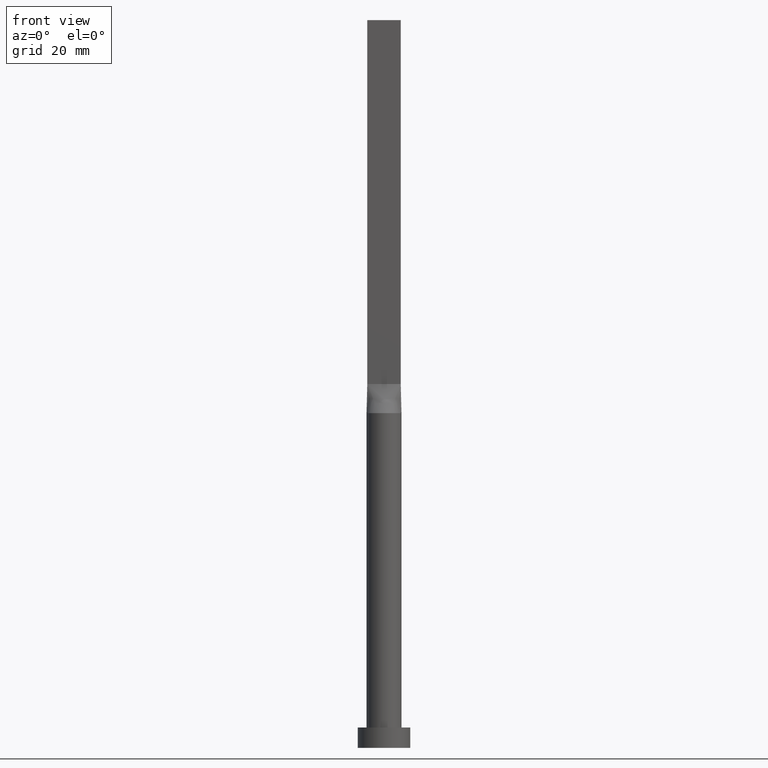
[diagram: clean part render]
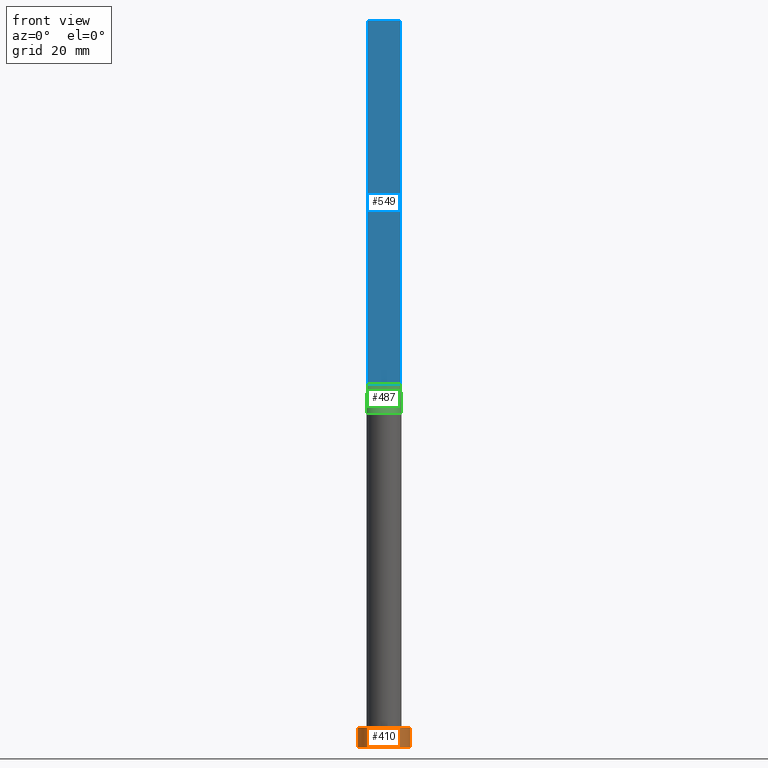
[diagram: same view with three faces highlighted in distinct colors, each labeled with its STEP entity id]
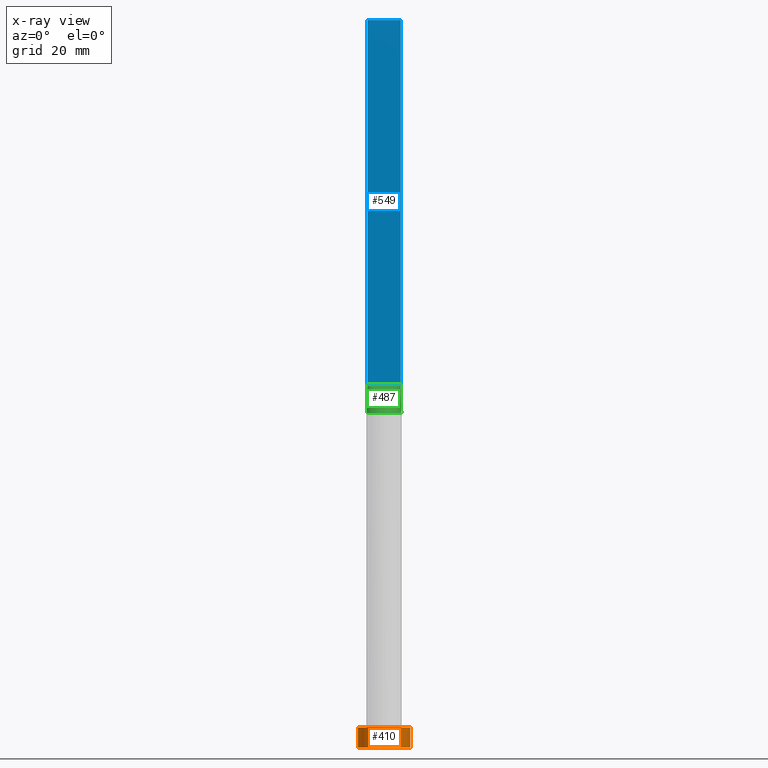
[diagram: x-ray of the same camera — body ghosted, the three highlighted faces saturated]
A machine part, front view with three faces highlighted in distinct colors.
The next image is the same camera in x-ray (body ghosted, the three faces saturated) — at least one of them is partly hidden behind the body in this view.
Their STEP definitions:

[orange] entity #410 — the highlighted cylindrical surface (edge-blend (fillet) strip) has radius 9 mm, axis along (-0, -0, -1).
#22 = CIRCLE ( 'NONE', #96, 9.000000000000000000 ) ;
#57 = VERTEX_POINT ( 'NONE', #619 ) ;
#63 = CARTESIAN_POINT ( 'NONE',  ( 0.000000000000000000, 0.000000000000000000, 0.000000000000000000 ) ) ;
#70 = CARTESIAN_POINT ( 'NONE',  ( 9.000000000000000000, 1.102182119232617714E-15, 7.000000000000000000 ) ) ;
#96 = AXIS2_PLACEMENT_3D ( 'NONE', #551, #222, #409 ) ;
#127 = DIRECTION ( 'NONE',  ( -0.000000000000000000, -0.000000000000000000, -1.000000000000000000 ) ) ;
#132 = DIRECTION ( 'NONE',  ( 1.000000000000000000, 0.000000000000000000, 0.000000000000000000 ) ) ;
#154 = VERTEX_POINT ( 'NONE', #561 ) ;
#165 = ORIENTED_EDGE ( 'NONE', *, *, #376, .F. ) ;
#169 = DIRECTION ( 'NONE',  ( -1.000000000000000000, 0.000000000000000000, 0.000000000000000000 ) ) ;
#211 = EDGE_CURVE ( 'NONE', #154, #575, #286, .T. ) ;
#213 = CARTESIAN_POINT ( 'NONE',  ( 0.000000000000000000, 0.000000000000000000, 7.000000000000000000 ) ) ;
#217 = ORIENTED_EDGE ( 'NONE', *, *, #395, .T. ) ;
#222 = DIRECTION ( 'NONE',  ( 0.000000000000000000, 0.000000000000000000, 1.000000000000000000 ) ) ;
#250 = DIRECTION ( 'NONE',  ( 0.000000000000000000, 0.000000000000000000, 1.000000000000000000 ) ) ;
#254 = LINE ( 'NONE', #258, #287 ) ;
#258 = CARTESIAN_POINT ( 'NONE',  ( -9.000000000000000000, 0.000000000000000000, 7.000000000000000000 ) ) ;
#286 = CIRCLE ( 'NONE', #433, 9.000000000000000000 ) ;
#287 = VECTOR ( 'NONE', #127, 1000.000000000000000 ) ;
#308 = CYLINDRICAL_SURFACE ( 'NONE', #588, 9.000000000000000000 ) ;
#333 = VECTOR ( 'NONE', #591, 1000.000000000000000 ) ;
#353 = LINE ( 'NONE', #70, #333 ) ;
#358 = FACE_OUTER_BOUND ( 'NONE', #569, .T. ) ;
#376 = EDGE_CURVE ( 'NONE', #544, #57, #22, .T. ) ;
#395 = EDGE_CURVE ( 'NONE', #544, #154, #254, .T. ) ;
#399 = CARTESIAN_POINT ( 'NONE',  ( 9.000000000000000000, 1.102182119232617714E-15, 0.000000000000000000 ) ) ;
#409 = DIRECTION ( 'NONE',  ( 1.000000000000000000, 0.000000000000000000, 0.000000000000000000 ) ) ;
#410 = ADVANCED_FACE ( 'NONE', ( #358 ), #308, .T. ) ;
#433 = AXIS2_PLACEMENT_3D ( 'NONE', #63, #250, #132 ) ;
#469 = CARTESIAN_POINT ( 'NONE',  ( -9.000000000000000000, 0.000000000000000000, 7.000000000000000000 ) ) ;
#478 = EDGE_CURVE ( 'NONE', #57, #575, #353, .T. ) ;
#524 = ORIENTED_EDGE ( 'NONE', *, *, #211, .T. ) ;
#537 = ORIENTED_EDGE ( 'NONE', *, *, #478, .F. ) ;
#544 = VERTEX_POINT ( 'NONE', #469 ) ;
#551 = CARTESIAN_POINT ( 'NONE',  ( 0.000000000000000000, 0.000000000000000000, 7.000000000000000000 ) ) ;
#561 = CARTESIAN_POINT ( 'NONE',  ( -9.000000000000000000, 0.000000000000000000, 0.000000000000000000 ) ) ;
#569 = EDGE_LOOP ( 'NONE', ( #537, #165, #217, #524 ) ) ;
#575 = VERTEX_POINT ( 'NONE', #399 ) ;
#588 = AXIS2_PLACEMENT_3D ( 'NONE', #213, #597, #169 ) ;
#591 = DIRECTION ( 'NONE',  ( -0.000000000000000000, -0.000000000000000000, -1.000000000000000000 ) ) ;
#597 = DIRECTION ( 'NONE',  ( -0.000000000000000000, -0.000000000000000000, -1.000000000000000000 ) ) ;
#619 = CARTESIAN_POINT ( 'NONE',  ( 9.000000000000000000, 1.102182119232617714E-15, 7.000000000000000000 ) ) ;

[blue] entity #549 — the highlighted planar face has unit normal (0, 1, -0).
#18 = EDGE_CURVE ( 'NONE', #240, #414, #288, .T. ) ;
#37 = DIRECTION ( 'NONE',  ( 1.000000000000000000, -7.542275982507857147E-17, 0.000000000000000000 ) ) ;
#55 = LINE ( 'NONE', #393, #426 ) ;
#59 = EDGE_CURVE ( 'NONE', #331, #205, #282, .T. ) ;
#65 = CARTESIAN_POINT ( 'NONE',  ( -5.750000000000000000, -0.9999999999999988898, 250.0000000000000000 ) ) ;
#67 = CARTESIAN_POINT ( 'NONE',  ( -5.750000000000000000, -0.9999999999999988898, 125.0000000000000000 ) ) ;
#76 = EDGE_CURVE ( 'NONE', #414, #205, #489, .T. ) ;
#103 = FACE_OUTER_BOUND ( 'NONE', #571, .T. ) ;
#107 = PLANE ( 'NONE',  #511 ) ;
#108 = CARTESIAN_POINT ( 'NONE',  ( 5.750000000000000000, -0.9999999999999997780, 125.0000000000000000 ) ) ;
#189 = ORIENTED_EDGE ( 'NONE', *, *, #59, .T. ) ;
#201 = CARTESIAN_POINT ( 'NONE',  ( -5.750000000000000000, -0.9999999999999988898, 250.0000000000000000 ) ) ;
#205 = VERTEX_POINT ( 'NONE', #108 ) ;
#212 = DIRECTION ( 'NONE',  ( 7.542275982507857147E-17, 1.000000000000000000, -0.000000000000000000 ) ) ;
#240 = VERTEX_POINT ( 'NONE', #201 ) ;
#244 = DIRECTION ( 'NONE',  ( 1.000000000000000000, -7.542275982507857147E-17, 0.000000000000000000 ) ) ;
#245 = EDGE_CURVE ( 'NONE', #240, #331, #55, .T. ) ;
#253 = DIRECTION ( 'NONE',  ( -1.000000000000000000, 7.542275982507857147E-17, 0.000000000000000000 ) ) ;
#260 = DIRECTION ( 'NONE',  ( -0.000000000000000000, -0.000000000000000000, -1.000000000000000000 ) ) ;
#282 = LINE ( 'NONE', #398, #452 ) ;
#283 = ORIENTED_EDGE ( 'NONE', *, *, #18, .F. ) ;
#288 = LINE ( 'NONE', #513, #586 ) ;
#311 = CARTESIAN_POINT ( 'NONE',  ( 5.750000000000000000, -0.9999999999999997780, 250.0000000000000000 ) ) ;
#314 = VECTOR ( 'NONE', #260, 1000.000000000000000 ) ;
#331 = VERTEX_POINT ( 'NONE', #67 ) ;
#339 = CARTESIAN_POINT ( 'NONE',  ( 5.750000000000000000, -0.9999999999999997780, 250.0000000000000000 ) ) ;
#390 = DIRECTION ( 'NONE',  ( -0.000000000000000000, -0.000000000000000000, -1.000000000000000000 ) ) ;
#393 = CARTESIAN_POINT ( 'NONE',  ( -5.750000000000000000, -0.9999999999999988898, 250.0000000000000000 ) ) ;
#398 = CARTESIAN_POINT ( 'NONE',  ( -5.750000000000000000, -0.9999999999999988898, 125.0000000000000000 ) ) ;
#414 = VERTEX_POINT ( 'NONE', #311 ) ;
#426 = VECTOR ( 'NONE', #390, 1000.000000000000000 ) ;
#452 = VECTOR ( 'NONE', #244, 1000.000000000000000 ) ;
#468 = ORIENTED_EDGE ( 'NONE', *, *, #245, .T. ) ;
#489 = LINE ( 'NONE', #339, #314 ) ;
#511 = AXIS2_PLACEMENT_3D ( 'NONE', #65, #212, #253 ) ;
#513 = CARTESIAN_POINT ( 'NONE',  ( -5.750000000000000000, -0.9999999999999988898, 250.0000000000000000 ) ) ;
#549 = ADVANCED_FACE ( 'NONE', ( #103 ), #107, .F. ) ;
#571 = EDGE_LOOP ( 'NONE', ( #189, #618, #283, #468 ) ) ;
#586 = VECTOR ( 'NONE', #37, 1000.000000000000000 ) ;
#618 = ORIENTED_EDGE ( 'NONE', *, *, #76, .F. ) ;

[green] entity #487 — the highlighted face is a freeform B-spline surface patch.
#2 = EDGE_CURVE ( 'NONE', #331, #342, #517, .T. ) ;
#15 = EDGE_LOOP ( 'NONE', ( #306, #243, #346, #465 ) ) ;
#29 = CARTESIAN_POINT ( 'NONE',  ( -5.750000000000000000, -0.9999999999999988898, 125.0000000000000000 ) ) ;
#42 = CARTESIAN_POINT ( 'NONE',  ( 5.911270528918047162, -1.028047048507488848, 115.0000000000000000 ) ) ;
#45 = CARTESIAN_POINT ( 'NONE',  ( 2.047812955694711778, -5.654083712646525761, 115.0000000000000000 ) ) ;
#48 = EDGE_CURVE ( 'NONE', #342, #277, #148, .T. ) ;
#49 = CARTESIAN_POINT ( 'NONE',  ( -3.129188161608687402, -5.133661927581552042, 115.0000000000000426 ) ) ;
#59 = EDGE_CURVE ( 'NONE', #331, #205, #282, .T. ) ;
#67 = CARTESIAN_POINT ( 'NONE',  ( -5.750000000000000000, -0.9999999999999988898, 125.0000000000000000 ) ) ;
#87 = CARTESIAN_POINT ( 'NONE',  ( 3.129188161608682073, -5.133661927581553819, 114.9999999999999858 ) ) ;
#91 = CARTESIAN_POINT ( 'NONE',  ( 3.755743307515260643, -4.694751915224761873, 114.9999999999999858 ) ) ;
#92 = CARTESIAN_POINT ( 'NONE',  ( 5.826866859193276404, -1.513368149424921372, 115.0000000000000284 ) ) ;
#108 = CARTESIAN_POINT ( 'NONE',  ( 5.750000000000000000, -0.9999999999999997780, 125.0000000000000000 ) ) ;
#118 = CARTESIAN_POINT ( 'NONE',  ( 5.830635264459022693, -1.014023524253744313, 120.0000000000000000 ) ) ;
#133 = CARTESIAN_POINT ( 'NONE',  ( 5.750000000000000000, -0.9999999999999997780, 125.0000000000000000 ) ) ;
#138 = CARTESIAN_POINT ( 'NONE',  ( -1.197916666666638097, -0.9999999999999991118, 125.0000000000000000 ) ) ;
#139 = DIRECTION ( 'NONE',  ( 1.000000000000000000, 0.000000000000000000, 0.000000000000000000 ) ) ;
#141 = CARTESIAN_POINT ( 'NONE',  ( 2.635416666666687835, -0.9999999999999991118, 125.0000000000000000 ) ) ;
#144 = CARTESIAN_POINT ( 'NONE',  ( -1.677083333333305948, -0.9999999999999991118, 125.0000000000000000 ) ) ;
#148 = CIRCLE ( 'NONE', #516, 6.000000000000000888 ) ;
#162 = CARTESIAN_POINT ( 'NONE',  ( 5.911281968884419591, -1.028049053400068802, 115.0000000000000000 ) ) ;
#163 = B_SPLINE_SURFACE_WITH_KNOTS ( 'NONE', 3, 1, ( 
 ( #451, #29 ),
 ( #220, #405 ),
 ( #176, #606 ),
 ( #459, #192 ),
 ( #364, #234 ),
 ( #422, #278 ),
 ( #371, #199 ),
 ( #49, #559 ),
 ( #566, #144 ),
 ( #368, #138 ),
 ( #325, #557 ),
 ( #284, #183 ),
 ( #613, #224 ),
 ( #420, #328 ),
 ( #510, #504 ),
 ( #316, #554 ),
 ( #45, #383 ),
 ( #188, #322 ),
 ( #87, #508 ),
 ( #91, #229 ),
 ( #227, #141 ),
 ( #617, #320 ),
 ( #620, #514 ),
 ( #417, #412 ),
 ( #92, #232 ),
 ( #42, #133 ) ),
 .UNSPECIFIED., .F., .F., .F.,
 ( 4, 2, 2, 2, 2, 2, 2, 2, 2, 2, 2, 2, 4 ),
 ( 2, 2 ),
 ( 0.000000000000000000, 0.1250000000000001388, 0.2500000000000002776, 0.3125000000000002220, 0.3750000000000001665, 0.4375000000000001665, 0.5000000000000001110, 0.5625000000000001110, 0.6250000000000000000, 0.6875000000000000000, 0.7499999999999998890, 0.8750000000000000000, 1.000000000000000000 ),
 ( 0.000000000000000000, 1.000000000000000000 ),
 .UNSPECIFIED. ) ;
#172 = DIRECTION ( 'NONE',  ( -0.01612489271847465655, 0.002804329168430633092, 0.9998660528154422744 ) ) ;
#176 = CARTESIAN_POINT ( 'NONE',  ( -5.674157483178165151, -2.041064365575944173, 115.0000000000000426 ) ) ;
#182 = DIRECTION ( 'NONE',  ( 0.000000000000000000, 0.000000000000000000, 1.000000000000000000 ) ) ;
#183 = CARTESIAN_POINT ( 'NONE',  ( -0.4791666666666375973, -0.9999999999999991118, 125.0000000000000000 ) ) ;
#188 = CARTESIAN_POINT ( 'NONE',  ( 2.785082292717038221, -5.329682650394847343, 114.9999999999999858 ) ) ;
#192 = CARTESIAN_POINT ( 'NONE',  ( -3.833333333333316162, -0.9999999999999991118, 125.0000000000000000 ) ) ;
#199 = CARTESIAN_POINT ( 'NONE',  ( -2.395833333333308168, -0.9999999999999991118, 125.0000000000000000 ) ) ;
#205 = VERTEX_POINT ( 'NONE', #108 ) ;
#220 = CARTESIAN_POINT ( 'NONE',  ( -5.826866859193279957, -1.513368149424916931, 114.9999999999999858 ) ) ;
#224 = CARTESIAN_POINT ( 'NONE',  ( -0.2395833333333046988, -0.9999999999999991118, 125.0000000000000000 ) ) ;
#225 = CARTESIAN_POINT ( 'NONE',  ( -5.830635264459023581, -1.014023524253742092, 120.0000000000000000 ) ) ;
#227 = CARTESIAN_POINT ( 'NONE',  ( 4.038230363771777576, -4.452009983475586630, 115.0000000000000000 ) ) ;
#229 = CARTESIAN_POINT ( 'NONE',  ( 2.395833333333355686, -0.9999999999999991118, 125.0000000000000000 ) ) ;
#232 = CARTESIAN_POINT ( 'NONE',  ( 5.270833333333338366, -0.9999999999999995559, 125.0000000000000000 ) ) ;
#234 = CARTESIAN_POINT ( 'NONE',  ( -3.354166666666646091, -0.9999999999999991118, 125.0000000000000000 ) ) ;
#235 = VECTOR ( 'NONE', #612, 1000.000000000000114 ) ;
#243 = ORIENTED_EDGE ( 'NONE', *, *, #419, .T. ) ;
#244 = DIRECTION ( 'NONE',  ( 1.000000000000000000, -7.542275982507857147E-17, 0.000000000000000000 ) ) ;
#277 = VERTEX_POINT ( 'NONE', #162 ) ;
#278 = CARTESIAN_POINT ( 'NONE',  ( -2.635416666666641650, -0.9999999999999991118, 125.0000000000000000 ) ) ;
#280 = VECTOR ( 'NONE', #172, 1000.000000000000114 ) ;
#282 = LINE ( 'NONE', #398, #452 ) ;
#284 = CARTESIAN_POINT ( 'NONE',  ( -0.8409966403356993192, -5.955311887060000586, 115.0000000000000000 ) ) ;
#306 = ORIENTED_EDGE ( 'NONE', *, *, #48, .T. ) ;
#316 = CARTESIAN_POINT ( 'NONE',  ( 1.654707822076783019, -5.782296865845954592, 115.0000000000000000 ) ) ;
#320 = CARTESIAN_POINT ( 'NONE',  ( 3.354166666666685170, -0.9999999999999993339, 125.0000000000000000 ) ) ;
#322 = CARTESIAN_POINT ( 'NONE',  ( 1.677083333333358794, -0.9999999999999991118, 125.0000000000000000 ) ) ;
#325 = CARTESIAN_POINT ( 'NONE',  ( -1.654707822076787016, -5.782296865845954592, 115.0000000000000142 ) ) ;
#328 = CARTESIAN_POINT ( 'NONE',  ( 0.2395833333333618198, -0.9999999999999991118, 125.0000000000000000 ) ) ;
#331 = VERTEX_POINT ( 'NONE', #67 ) ;
#342 = VERTEX_POINT ( 'NONE', #501 ) ;
#346 = ORIENTED_EDGE ( 'NONE', *, *, #59, .F. ) ;
#364 = CARTESIAN_POINT ( 'NONE',  ( -4.788055724916950417, -3.685825800347680925, 115.0000000000000142 ) ) ;
#368 = CARTESIAN_POINT ( 'NONE',  ( -2.047812955694717107, -5.654083712646522208, 114.9999999999999716 ) ) ;
#371 = CARTESIAN_POINT ( 'NONE',  ( -3.755743307515267304, -4.694751915224760985, 115.0000000000000284 ) ) ;
#383 = CARTESIAN_POINT ( 'NONE',  ( 1.197916666666693830, -0.9999999999999991118, 125.0000000000000000 ) ) ;
#398 = CARTESIAN_POINT ( 'NONE',  ( -5.750000000000000000, -0.9999999999999988898, 125.0000000000000000 ) ) ;
#405 = CARTESIAN_POINT ( 'NONE',  ( -5.270833333333328596, -0.9999999999999988898, 125.0000000000000000 ) ) ;
#412 = CARTESIAN_POINT ( 'NONE',  ( 4.791666666666675845, -0.9999999999999995559, 125.0000000000000000 ) ) ;
#417 = CARTESIAN_POINT ( 'NONE',  ( 5.674157483178163375, -2.041064365575950390, 115.0000000000000284 ) ) ;
#419 = EDGE_CURVE ( 'NONE', #277, #205, #496, .T. ) ;
#420 = CARTESIAN_POINT ( 'NONE',  ( 0.4205485882577698065, -6.000000000000002665, 114.9999999999999858 ) ) ;
#422 = CARTESIAN_POINT ( 'NONE',  ( -4.038230363771782017, -4.452009983475583077, 115.0000000000000000 ) ) ;
#451 = CARTESIAN_POINT ( 'NONE',  ( -5.911270528918048051, -1.028047048507485295, 115.0000000000000000 ) ) ;
#452 = VECTOR ( 'NONE', #244, 1000.000000000000000 ) ;
#459 = CARTESIAN_POINT ( 'NONE',  ( -5.155904004142095154, -3.127085030567956725, 115.0000000000000142 ) ) ;
#465 = ORIENTED_EDGE ( 'NONE', *, *, #2, .T. ) ;
#487 = ADVANCED_FACE ( 'NONE', ( #538 ), #163, .T. ) ;
#496 = LINE ( 'NONE', #118, #280 ) ;
#501 = CARTESIAN_POINT ( 'NONE',  ( -5.911272568678778150, -1.028047416901946898, 115.0000000000000000 ) ) ;
#504 = CARTESIAN_POINT ( 'NONE',  ( 0.4791666666666954399, -0.9999999999999991118, 125.0000000000000000 ) ) ;
#508 = CARTESIAN_POINT ( 'NONE',  ( 1.916666666666691166, -0.9999999999999991118, 125.0000000000000000 ) ) ;
#510 = CARTESIAN_POINT ( 'NONE',  ( 0.8409966403356938791, -5.955311887059998810, 115.0000000000000284 ) ) ;
#514 = CARTESIAN_POINT ( 'NONE',  ( 3.833333333333349024, -0.9999999999999995559, 125.0000000000000000 ) ) ;
#516 = AXIS2_PLACEMENT_3D ( 'NONE', #604, #182, #139 ) ;
#517 = LINE ( 'NONE', #225, #235 ) ;
#538 = FACE_OUTER_BOUND ( 'NONE', #15, .T. ) ;
#554 = CARTESIAN_POINT ( 'NONE',  ( 0.9583333333333613480, -0.9999999999999991118, 125.0000000000000000 ) ) ;
#557 = CARTESIAN_POINT ( 'NONE',  ( -0.9583333333333042825, -0.9999999999999991118, 125.0000000000000000 ) ) ;
#559 = CARTESIAN_POINT ( 'NONE',  ( -1.916666666666639873, -0.9999999999999991118, 125.0000000000000000 ) ) ;
#566 = CARTESIAN_POINT ( 'NONE',  ( -2.785082292717044439, -5.329682650394844678, 115.0000000000000000 ) ) ;
#604 = CARTESIAN_POINT ( 'NONE',  ( 0.000000000000000000, 0.000000000000000000, 115.0000000000000000 ) ) ;
#606 = CARTESIAN_POINT ( 'NONE',  ( -4.791666666666657193, -0.9999999999999988898, 125.0000000000000000 ) ) ;
#612 = DIRECTION ( 'NONE',  ( -0.01612489271847474676, -0.002804329168430372884, -0.9998660528154422744 ) ) ;
#613 = CARTESIAN_POINT ( 'NONE',  ( -0.4205485882577738588, -6.000000000000000888, 115.0000000000000426 ) ) ;
#617 = CARTESIAN_POINT ( 'NONE',  ( 4.788055724916943312, -3.685825800347684922, 114.9999999999999716 ) ) ;
#620 = CARTESIAN_POINT ( 'NONE',  ( 5.155904004142090713, -3.127085030567962498, 115.0000000000000284 ) ) ;